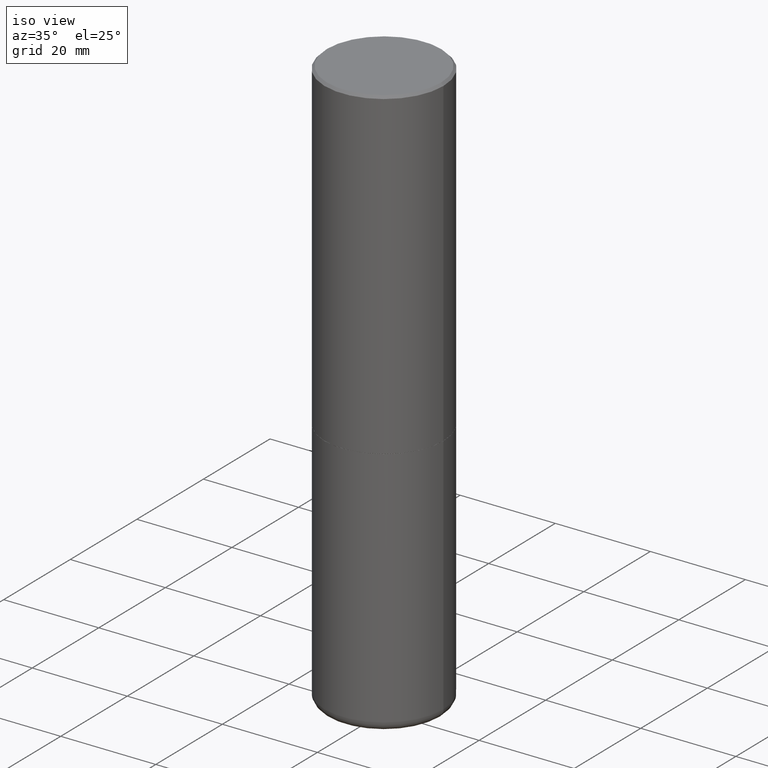
[diagram: clean part render]
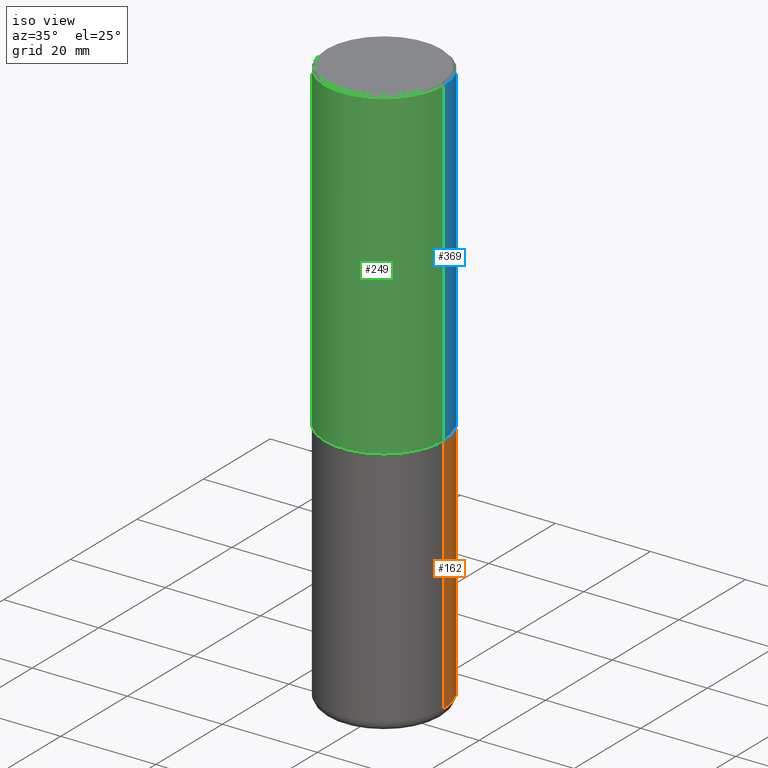
[diagram: same view with three faces highlighted in distinct colors, each labeled with its STEP entity id]
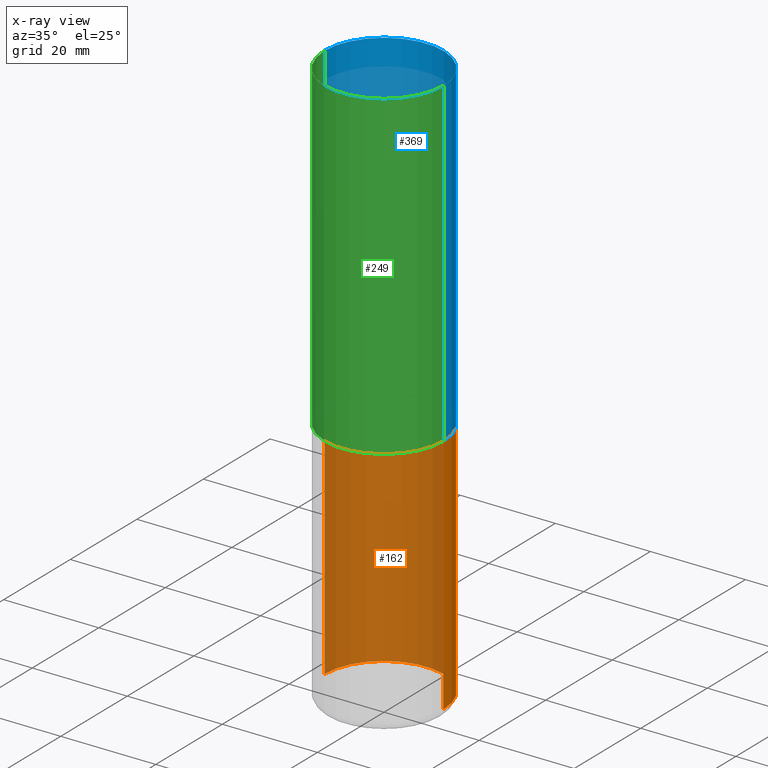
[diagram: x-ray of the same camera — body ghosted, the three highlighted faces saturated]
A machine part, iso view with three faces highlighted in distinct colors.
The next image is the same camera in x-ray (body ghosted, the three faces saturated) — at least one of them is partly hidden behind the body in this view.
Their STEP definitions:

[orange] entity #162 — the highlighted cylindrical surface (partial cylindrical patch) has radius 12.5006 mm, axis along (-0, 0, 1).
#8 = DIRECTION ( 'NONE',  ( 1.000000000000000000, -6.982962677686265922E-15, 4.876176775795935793E-29 ) ) ;
#15 = DIRECTION ( 'NONE',  ( 1.000000000000000000, -6.982962677686265133E-15, 0.000000000000000000 ) ) ;
#37 = DIRECTION ( 'NONE',  ( -2.445468806185136877E-29, 3.491481338843145188E-15, 1.000000000000000000 ) ) ;
#39 = CYLINDRICAL_SURFACE ( 'NONE', #103, 0.4921499999999999764 ) ;
#42 = ORIENTED_EDGE ( 'NONE', *, *, #304, .T. ) ;
#46 = CARTESIAN_POINT ( 'NONE',  ( 0.4921499999999999764, -3.436665081823295777E-15, 2.399810400207969603E-29 ) ) ;
#53 = VECTOR ( 'NONE', #67, 39.37007874015748143 ) ;
#67 = DIRECTION ( 'NONE',  ( -2.445468806185136877E-29, 3.491481338843145188E-15, 1.000000000000000000 ) ) ;
#71 = LINE ( 'NONE', #46, #53 ) ;
#73 = FACE_OUTER_BOUND ( 'NONE', #156, .T. ) ;
#76 = CARTESIAN_POINT ( 'NONE',  ( 1.145726590385798145E-28, -1.635793922061402197E-14, -4.685099999999999376 ) ) ;
#94 = VERTEX_POINT ( 'NONE', #378 ) ;
#98 = ORIENTED_EDGE ( 'NONE', *, *, #104, .T. ) ;
#103 = AXIS2_PLACEMENT_3D ( 'NONE', #385, #293, #8 ) ;
#104 = EDGE_CURVE ( 'NONE', #94, #280, #417, .T. ) ;
#132 = AXIS2_PLACEMENT_3D ( 'NONE', #76, #172, #15 ) ;
#141 = CARTESIAN_POINT ( 'NONE',  ( -0.4921499999999999764, -9.355730456439111248E-15, -2.677199999999999580 ) ) ;
#156 = EDGE_LOOP ( 'NONE', ( #42, #98, #184, #386 ) ) ;
#162 = ADVANCED_FACE ( 'NONE', ( #73 ), #39, .T. ) ;
#172 = DIRECTION ( 'NONE',  ( -2.445468806185136597E-29, 3.491481338843145583E-15, 1.000000000000000000 ) ) ;
#184 = ORIENTED_EDGE ( 'NONE', *, *, #286, .F. ) ;
#188 = CIRCLE ( 'NONE', #207, 0.4921499999999999764 ) ;
#191 = CARTESIAN_POINT ( 'NONE',  ( -0.4921499999999999764, 3.496936074043332897E-15, -2.420853904668951509E-29 ) ) ;
#203 = DIRECTION ( 'NONE',  ( -2.445468806185136597E-29, 3.491481338843145583E-15, 1.000000000000000000 ) ) ;
#207 = AXIS2_PLACEMENT_3D ( 'NONE', #297, #203, #237 ) ;
#217 = VECTOR ( 'NONE', #37, 39.37007874015748143 ) ;
#223 = VERTEX_POINT ( 'NONE', #234 ) ;
#234 = CARTESIAN_POINT ( 'NONE',  ( 0.4921499999999998098, -1.979460430243731302E-14, -4.685099999999999376 ) ) ;
#237 = DIRECTION ( 'NONE',  ( 1.000000000000000000, -6.982962677686265922E-15, 0.000000000000000000 ) ) ;
#242 = EDGE_CURVE ( 'NONE', #223, #351, #71, .T. ) ;
#246 = CIRCLE ( 'NONE', #132, 0.4921500000000000319 ) ;
#280 = VERTEX_POINT ( 'NONE', #141 ) ;
#286 = EDGE_CURVE ( 'NONE', #351, #280, #188, .T. ) ;
#293 = DIRECTION ( 'NONE',  ( -2.445468806185136597E-29, 3.491481338843145583E-15, 1.000000000000000000 ) ) ;
#297 = CARTESIAN_POINT ( 'NONE',  ( 6.547009087918846705E-29, -9.347393840350866318E-15, -2.677199999999999580 ) ) ;
#304 = EDGE_CURVE ( 'NONE', #223, #94, #246, .T. ) ;
#351 = VERTEX_POINT ( 'NONE', #403 ) ;
#378 = CARTESIAN_POINT ( 'NONE',  ( -0.4921499999999998098, -1.286100314657068829E-14, -4.685099999999999376 ) ) ;
#385 = CARTESIAN_POINT ( 'NONE',  ( 0.000000000000000000, 0.000000000000000000, 0.000000000000000000 ) ) ;
#386 = ORIENTED_EDGE ( 'NONE', *, *, #242, .F. ) ;
#403 = CARTESIAN_POINT ( 'NONE',  ( 0.4921499999999999764, -1.278405892217416209E-14, -2.677199999999999580 ) ) ;
#417 = LINE ( 'NONE', #191, #217 ) ;

[blue] entity #369 — the highlighted cylindrical surface (partial cylindrical patch) has radius 12.5006 mm, axis along (-0, 0, 1).
#2 = CARTESIAN_POINT ( 'NONE',  ( -0.4921499999999999764, 3.366835455046432478E-15, -0.02000000000000010797 ) ) ;
#7 = VERTEX_POINT ( 'NONE', #157 ) ;
#20 = AXIS2_PLACEMENT_3D ( 'NONE', #137, #371, #111 ) ;
#33 = VERTEX_POINT ( 'NONE', #216 ) ;
#35 = ORIENTED_EDGE ( 'NONE', *, *, #96, .T. ) ;
#51 = VERTEX_POINT ( 'NONE', #2 ) ;
#79 = CARTESIAN_POINT ( 'NONE',  ( 0.4921499999999999764, -3.446223716380122349E-15, -0.02000000000000010797 ) ) ;
#81 = EDGE_CURVE ( 'NONE', #380, #51, #355, .T. ) ;
#84 = VECTOR ( 'NONE', #171, 39.37007874015748143 ) ;
#96 = EDGE_CURVE ( 'NONE', #7, #33, #362, .T. ) ;
#111 = DIRECTION ( 'NONE',  ( 1.000000000000000000, -6.982962677686265922E-15, 4.876176775795935793E-29 ) ) ;
#116 = DIRECTION ( 'NONE',  ( -2.445468806185136877E-29, 3.491481338843145188E-15, 1.000000000000000000 ) ) ;
#121 = DIRECTION ( 'NONE',  ( -2.445468806185136597E-29, 3.491481338843145583E-15, 1.000000000000000000 ) ) ;
#124 = EDGE_LOOP ( 'NONE', ( #35, #235, #158, #344 ) ) ;
#137 = CARTESIAN_POINT ( 'NONE',  ( 0.000000000000000000, 0.000000000000000000, 0.000000000000000000 ) ) ;
#142 = FACE_OUTER_BOUND ( 'NONE', #124, .T. ) ;
#151 = AXIS2_PLACEMENT_3D ( 'NONE', #175, #121, #410 ) ;
#157 = CARTESIAN_POINT ( 'NONE',  ( 0.4921500000000003094, -1.278056744083532224E-14, -2.676199999999999690 ) ) ;
#158 = ORIENTED_EDGE ( 'NONE', *, *, #81, .F. ) ;
#171 = DIRECTION ( 'NONE',  ( -2.445468806185136877E-29, 3.491481338843145188E-15, 1.000000000000000000 ) ) ;
#175 = CARTESIAN_POINT ( 'NONE',  ( 4.890937612370299433E-31, -6.982962677686328587E-17, -0.02000000000000010797 ) ) ;
#195 = VECTOR ( 'NONE', #116, 39.37007874015748143 ) ;
#198 = LINE ( 'NONE', #270, #84 ) ;
#213 = CARTESIAN_POINT ( 'NONE',  ( 6.544563619112662223E-29, -9.343902359012024888E-15, -2.676199999999999690 ) ) ;
#216 = CARTESIAN_POINT ( 'NONE',  ( -0.4921500000000003094, -1.209929918851106266E-15, -2.676199999999999690 ) ) ;
#235 = ORIENTED_EDGE ( 'NONE', *, *, #306, .T. ) ;
#270 = CARTESIAN_POINT ( 'NONE',  ( -0.4921500000000000874, 3.496936074043333686E-15, -2.420853904668952350E-29 ) ) ;
#281 = DIRECTION ( 'NONE',  ( 1.000000000000000000, -6.982962677686265922E-15, 0.000000000000000000 ) ) ;
#296 = CYLINDRICAL_SURFACE ( 'NONE', #20, 0.4921500000000000874 ) ;
#306 = EDGE_CURVE ( 'NONE', #33, #51, #198, .T. ) ;
#338 = LINE ( 'NONE', #406, #195 ) ;
#344 = ORIENTED_EDGE ( 'NONE', *, *, #393, .F. ) ;
#346 = DIRECTION ( 'NONE',  ( -2.445468806185136597E-29, 3.491481338843145583E-15, 1.000000000000000000 ) ) ;
#355 = CIRCLE ( 'NONE', #151, 0.4921499999999999764 ) ;
#362 = CIRCLE ( 'NONE', #398, 0.4921500000000003094 ) ;
#369 = ADVANCED_FACE ( 'NONE', ( #142 ), #296, .T. ) ;
#371 = DIRECTION ( 'NONE',  ( -2.445468806185136597E-29, 3.491481338843145583E-15, 1.000000000000000000 ) ) ;
#380 = VERTEX_POINT ( 'NONE', #79 ) ;
#393 = EDGE_CURVE ( 'NONE', #7, #380, #338, .T. ) ;
#398 = AXIS2_PLACEMENT_3D ( 'NONE', #213, #346, #281 ) ;
#406 = CARTESIAN_POINT ( 'NONE',  ( 0.4921500000000000874, -3.436665081823296565E-15, 2.399810400207970163E-29 ) ) ;
#410 = DIRECTION ( 'NONE',  ( 1.000000000000000000, -6.982962677686265922E-15, 0.000000000000000000 ) ) ;

[green] entity #249 — the highlighted cylindrical surface (partial cylindrical patch) has radius 12.5006 mm, axis along (-0, 0, 1).
#2 = CARTESIAN_POINT ( 'NONE',  ( -0.4921499999999999764, 3.366835455046432478E-15, -0.02000000000000010797 ) ) ;
#3 = CIRCLE ( 'NONE', #330, 0.4921499999999999764 ) ;
#5 = EDGE_LOOP ( 'NONE', ( #318, #36, #288, #66 ) ) ;
#6 = DIRECTION ( 'NONE',  ( 1.000000000000000000, -6.982962677686265922E-15, 0.000000000000000000 ) ) ;
#7 = VERTEX_POINT ( 'NONE', #157 ) ;
#32 = EDGE_CURVE ( 'NONE', #33, #7, #54, .T. ) ;
#33 = VERTEX_POINT ( 'NONE', #216 ) ;
#36 = ORIENTED_EDGE ( 'NONE', *, *, #32, .T. ) ;
#51 = VERTEX_POINT ( 'NONE', #2 ) ;
#54 = CIRCLE ( 'NONE', #389, 0.4921500000000003094 ) ;
#66 = ORIENTED_EDGE ( 'NONE', *, *, #196, .F. ) ;
#79 = CARTESIAN_POINT ( 'NONE',  ( 0.4921499999999999764, -3.446223716380122349E-15, -0.02000000000000010797 ) ) ;
#84 = VECTOR ( 'NONE', #171, 39.37007874015748143 ) ;
#90 = DIRECTION ( 'NONE',  ( -2.445468806185136597E-29, 3.491481338843145583E-15, 1.000000000000000000 ) ) ;
#99 = DIRECTION ( 'NONE',  ( -2.445468806185136597E-29, 3.491481338843145583E-15, 1.000000000000000000 ) ) ;
#116 = DIRECTION ( 'NONE',  ( -2.445468806185136877E-29, 3.491481338843145188E-15, 1.000000000000000000 ) ) ;
#157 = CARTESIAN_POINT ( 'NONE',  ( 0.4921500000000003094, -1.278056744083532224E-14, -2.676199999999999690 ) ) ;
#168 = DIRECTION ( 'NONE',  ( 1.000000000000000000, -6.982962677686265922E-15, 4.876176775795935793E-29 ) ) ;
#171 = DIRECTION ( 'NONE',  ( -2.445468806185136877E-29, 3.491481338843145188E-15, 1.000000000000000000 ) ) ;
#189 = FACE_OUTER_BOUND ( 'NONE', #5, .T. ) ;
#195 = VECTOR ( 'NONE', #116, 39.37007874015748143 ) ;
#196 = EDGE_CURVE ( 'NONE', #51, #380, #3, .T. ) ;
#198 = LINE ( 'NONE', #270, #84 ) ;
#202 = AXIS2_PLACEMENT_3D ( 'NONE', #357, #224, #168 ) ;
#210 = DIRECTION ( 'NONE',  ( 1.000000000000000000, -6.982962677686265922E-15, 0.000000000000000000 ) ) ;
#216 = CARTESIAN_POINT ( 'NONE',  ( -0.4921500000000003094, -1.209929918851106266E-15, -2.676199999999999690 ) ) ;
#224 = DIRECTION ( 'NONE',  ( -2.445468806185136597E-29, 3.491481338843145583E-15, 1.000000000000000000 ) ) ;
#232 = CARTESIAN_POINT ( 'NONE',  ( 4.890937612370299433E-31, -6.982962677686328587E-17, -0.02000000000000010797 ) ) ;
#249 = ADVANCED_FACE ( 'NONE', ( #189 ), #332, .T. ) ;
#270 = CARTESIAN_POINT ( 'NONE',  ( -0.4921500000000000874, 3.496936074043333686E-15, -2.420853904668952350E-29 ) ) ;
#284 = CARTESIAN_POINT ( 'NONE',  ( 6.544563619112662223E-29, -9.343902359012024888E-15, -2.676199999999999690 ) ) ;
#288 = ORIENTED_EDGE ( 'NONE', *, *, #393, .T. ) ;
#306 = EDGE_CURVE ( 'NONE', #33, #51, #198, .T. ) ;
#318 = ORIENTED_EDGE ( 'NONE', *, *, #306, .F. ) ;
#330 = AXIS2_PLACEMENT_3D ( 'NONE', #232, #99, #6 ) ;
#332 = CYLINDRICAL_SURFACE ( 'NONE', #202, 0.4921500000000000874 ) ;
#338 = LINE ( 'NONE', #406, #195 ) ;
#357 = CARTESIAN_POINT ( 'NONE',  ( 0.000000000000000000, 0.000000000000000000, 0.000000000000000000 ) ) ;
#380 = VERTEX_POINT ( 'NONE', #79 ) ;
#389 = AXIS2_PLACEMENT_3D ( 'NONE', #284, #90, #210 ) ;
#393 = EDGE_CURVE ( 'NONE', #7, #380, #338, .T. ) ;
#406 = CARTESIAN_POINT ( 'NONE',  ( 0.4921500000000000874, -3.436665081823296565E-15, 2.399810400207970163E-29 ) ) ;